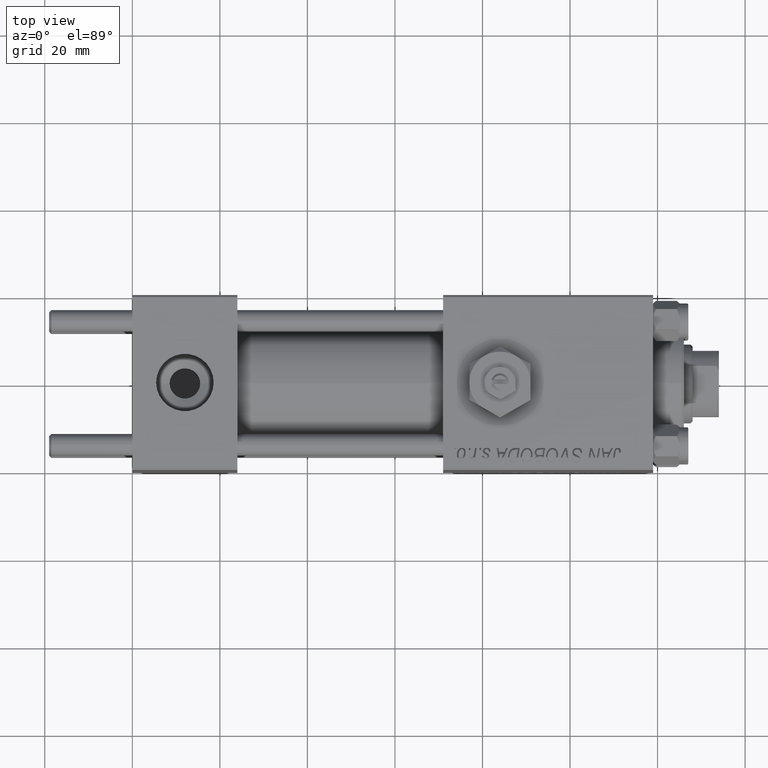
[diagram: clean part render]
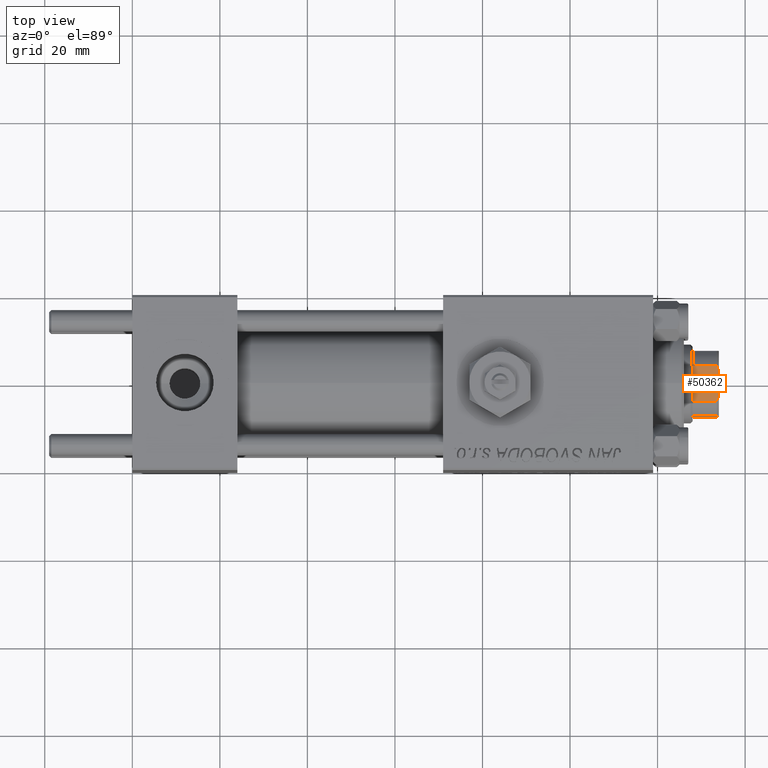
[diagram: same view with one face highlighted and labeled with its STEP entity id]
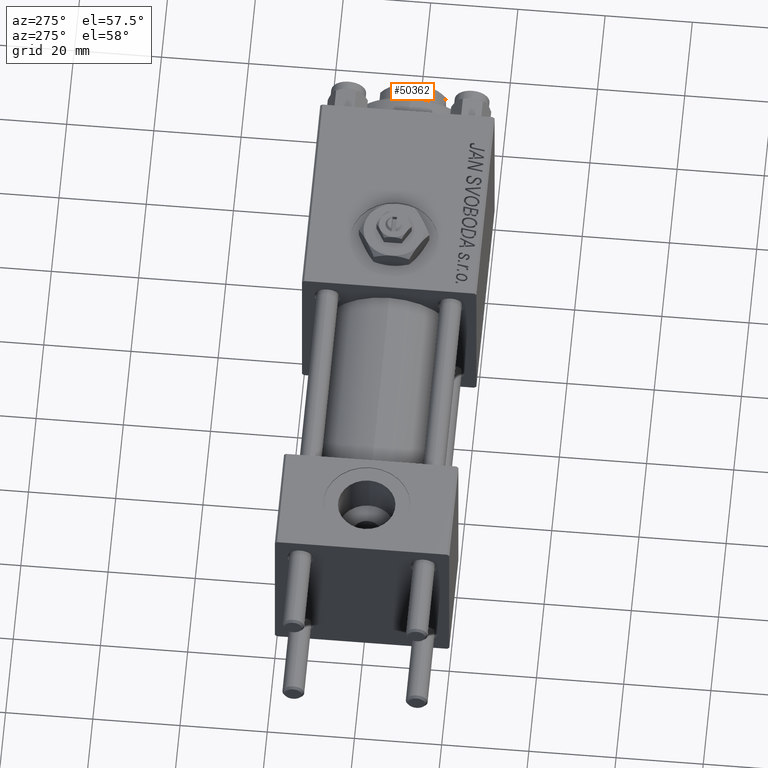
[diagram: same view with one face highlighted and labeled with its STEP entity id]
A machine part, top view. The second image highlights one B-rep face of the part: STEP entity #50362.
A second angle (auxiliary view) of the same face is appended — the face is thin or edge-on in the first view.
In plain terms, the highlighted planar face has unit normal (-0, 0, -1).
Its self-contained STEP definition (entity closure, byte-faithful):
#3215 = EDGE_CURVE ( 'NONE', #6303, #29286, #36899, .T. ) ;
#3248 = CARTESIAN_POINT ( 'NONE',  ( -2.783882181414881973, -7.500000000000000000, 110.0000000000000000 ) ) ;
#6303 = VERTEX_POINT ( 'NONE', #42937 ) ;
#6946 = LINE ( 'NONE', #43133, #28722 ) ;
#7747 = VECTOR ( 'NONE', #38405, 1000.000000000000000 ) ;
#8972 = CARTESIAN_POINT ( 'NONE',  ( 2.783882181414686574, -7.500000000000000000, 110.0000000000000000 ) ) ;
#10758 = LINE ( 'NONE', #35141, #22496 ) ;
#10866 = CARTESIAN_POINT ( 'NONE',  ( -3.602928590769680639, -7.500000000000000000, 109.6868571337553959 ) ) ;
#11707 = DIRECTION ( 'NONE',  ( -0.000000000000000000, -0.000000000000000000, 1.000000000000000000 ) ) ;
#12318 = CARTESIAN_POINT ( 'NONE',  ( -2.783882181414881973, -7.500000000000000000, 110.0000000000000000 ) ) ;
#12634 = CARTESIAN_POINT ( 'NONE',  ( 4.000000000000001776, -7.500000000000000000, 109.4999999999998579 ) ) ;
#13934 = DIRECTION ( 'NONE',  ( 1.000000000000000000, 0.000000000000000000, 0.000000000000000000 ) ) ;
#14158 = PLANE ( 'NONE',  #24526 ) ;
#14610 = VERTEX_POINT ( 'NONE', #12318 ) ;
#14627 = CARTESIAN_POINT ( 'NONE',  ( -4.000000000000001776, -7.500000000000000000, -0.001000000000001000089 ) ) ;
#14987 = CARTESIAN_POINT ( 'NONE',  ( 2.783882181414686574, -7.500000000000000000, 110.0000000000000000 ) ) ;
#15478 = ORIENTED_EDGE ( 'NONE', *, *, #34512, .F. ) ;
#17265 = EDGE_CURVE ( 'NONE', #43380, #51486, #10758, .T. ) ;
#18350 = FACE_OUTER_BOUND ( 'NONE', #35140, .T. ) ;
#20497 = CARTESIAN_POINT ( 'NONE',  ( -4.000000000000001776, -7.500000000000000000, 103.9999999999999858 ) ) ;
#22496 = VECTOR ( 'NONE', #13934, 1000.000000000000000 ) ;
#23947 = ORIENTED_EDGE ( 'NONE', *, *, #3215, .T. ) ;
#24118 = ORIENTED_EDGE ( 'NONE', *, *, #29972, .T. ) ;
#24526 = AXIS2_PLACEMENT_3D ( 'NONE', #41478, #25717, #29910 ) ;
#24739 = CARTESIAN_POINT ( 'NONE',  ( -4.000000000000001776, -7.500000000000000000, 109.4999999999999147 ) ) ;
#25717 = DIRECTION ( 'NONE',  ( 0.000000000000000000, 1.000000000000000000, 0.000000000000000000 ) ) ;
#26867 = CARTESIAN_POINT ( 'NONE',  ( -4.000000000000001776, -7.500000000000000000, 109.4999999999999147 ) ) ;
#28722 = VECTOR ( 'NONE', #34746, 1000.000000000000000 ) ;
#29286 = VERTEX_POINT ( 'NONE', #14987 ) ;
#29781 = LINE ( 'NONE', #42099, #7747 ) ;
#29910 = DIRECTION ( 'NONE',  ( 0.000000000000000000, -0.000000000000000000, 1.000000000000000000 ) ) ;
#29972 = EDGE_CURVE ( 'NONE', #14610, #44290, #34655, .T. ) ;
#30011 = EDGE_CURVE ( 'NONE', #14610, #29286, #6946, .T. ) ;
#30538 = VECTOR ( 'NONE', #11707, 1000.000000000000000 ) ;
#34512 = EDGE_CURVE ( 'NONE', #43380, #44290, #43204, .T. ) ;
#34655 = B_SPLINE_CURVE_WITH_KNOTS ( 'NONE', 3,
 ( #3248, #34991, #10866, #26867 ),
 .UNSPECIFIED., .F., .F.,
 ( 4, 4 ),
 ( 0.000000000000000000, 0.001314892599675087379 ),
 .UNSPECIFIED. ) ;
#34746 = DIRECTION ( 'NONE',  ( 1.000000000000000000, 0.000000000000000000, 0.000000000000000000 ) ) ;
#34991 = CARTESIAN_POINT ( 'NONE',  ( -3.198463757182627099, -7.500000000000000000, 109.8557317173096521 ) ) ;
#35140 = EDGE_LOOP ( 'NONE', ( #50837, #23947, #45051, #24118, #15478, #48009 ) ) ;
#35141 = CARTESIAN_POINT ( 'NONE',  ( -7.499999999999998224, -7.500000000000000000, 104.0000000000000000 ) ) ;
#36899 = B_SPLINE_CURVE_WITH_KNOTS ( 'NONE', 3,
 ( #12634, #49379, #48588, #8972 ),
 .UNSPECIFIED., .F., .F.,
 ( 4, 4 ),
 ( 9.540979117872439019E-18, 0.001314892599675281017 ),
 .UNSPECIFIED. ) ;
#38405 = DIRECTION ( 'NONE',  ( -0.000000000000000000, -0.000000000000000000, 1.000000000000000000 ) ) ;
#41478 = CARTESIAN_POINT ( 'NONE',  ( -7.499999999999998224, -7.500000000000000000, 110.0000000000000000 ) ) ;
#42099 = CARTESIAN_POINT ( 'NONE',  ( 4.000000000000001776, -7.500000000000000000, -0.001000000000001000089 ) ) ;
#42438 = CARTESIAN_POINT ( 'NONE',  ( 4.000000000000001776, -7.500000000000000000, 103.9999999999999716 ) ) ;
#42937 = CARTESIAN_POINT ( 'NONE',  ( 4.000000000000001776, -7.500000000000000000, 109.4999999999998579 ) ) ;
#43133 = CARTESIAN_POINT ( 'NONE',  ( -7.499999999999998224, -7.500000000000000000, 110.0000000000000000 ) ) ;
#43204 = LINE ( 'NONE', #14627, #30538 ) ;
#43380 = VERTEX_POINT ( 'NONE', #20497 ) ;
#44290 = VERTEX_POINT ( 'NONE', #24739 ) ;
#45045 = EDGE_CURVE ( 'NONE', #51486, #6303, #29781, .T. ) ;
#45051 = ORIENTED_EDGE ( 'NONE', *, *, #30011, .F. ) ;
#48009 = ORIENTED_EDGE ( 'NONE', *, *, #17265, .T. ) ;
#48588 = CARTESIAN_POINT ( 'NONE',  ( 3.198463757182489431, -7.500000000000000000, 109.8557317173096379 ) ) ;
#49379 = CARTESIAN_POINT ( 'NONE',  ( 3.602928590769623352, -7.500000000000000000, 109.6868571337553675 ) ) ;
#50362 = ADVANCED_FACE ( 'NONE', ( #18350 ), #14158, .F. ) ;
#50837 = ORIENTED_EDGE ( 'NONE', *, *, #45045, .T. ) ;
#51486 = VERTEX_POINT ( 'NONE', #42438 ) ;